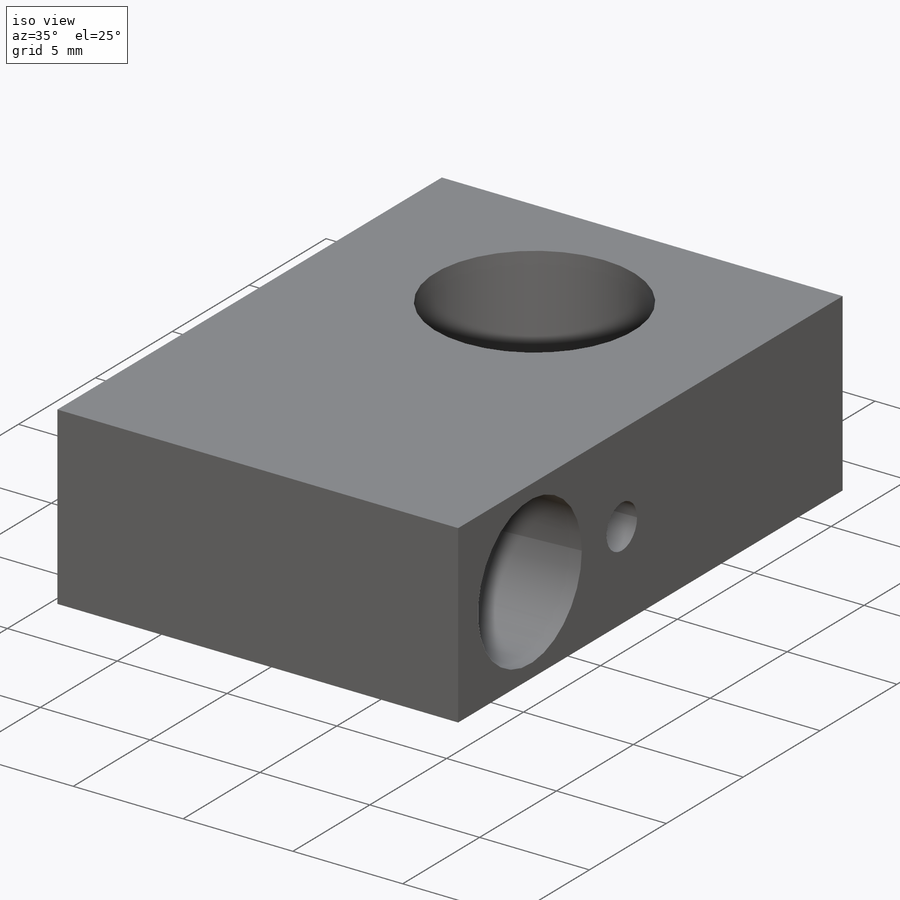
[diagram: iso view]
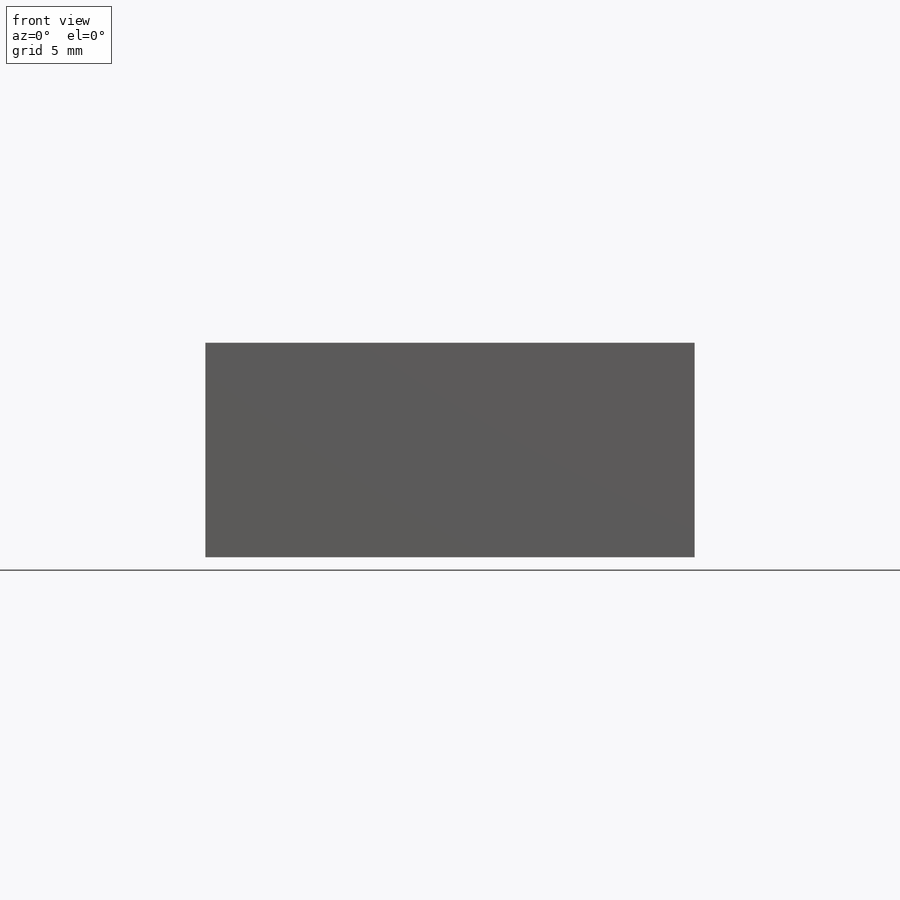
[diagram: front view]
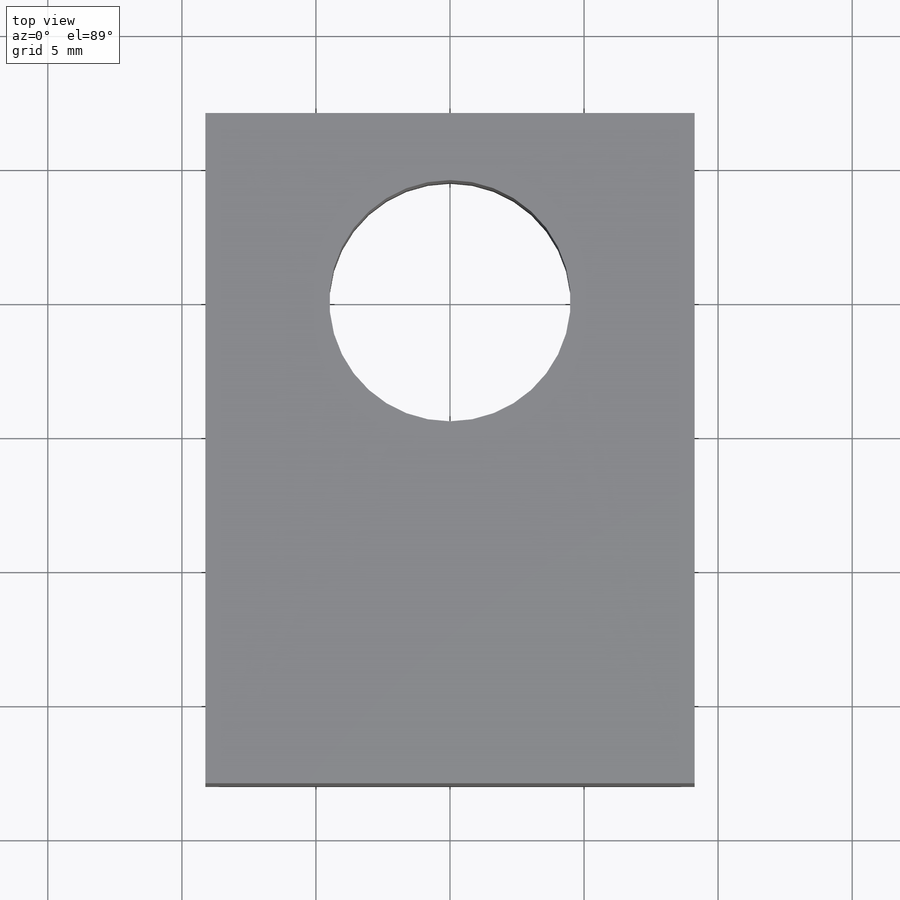
[diagram: top view]
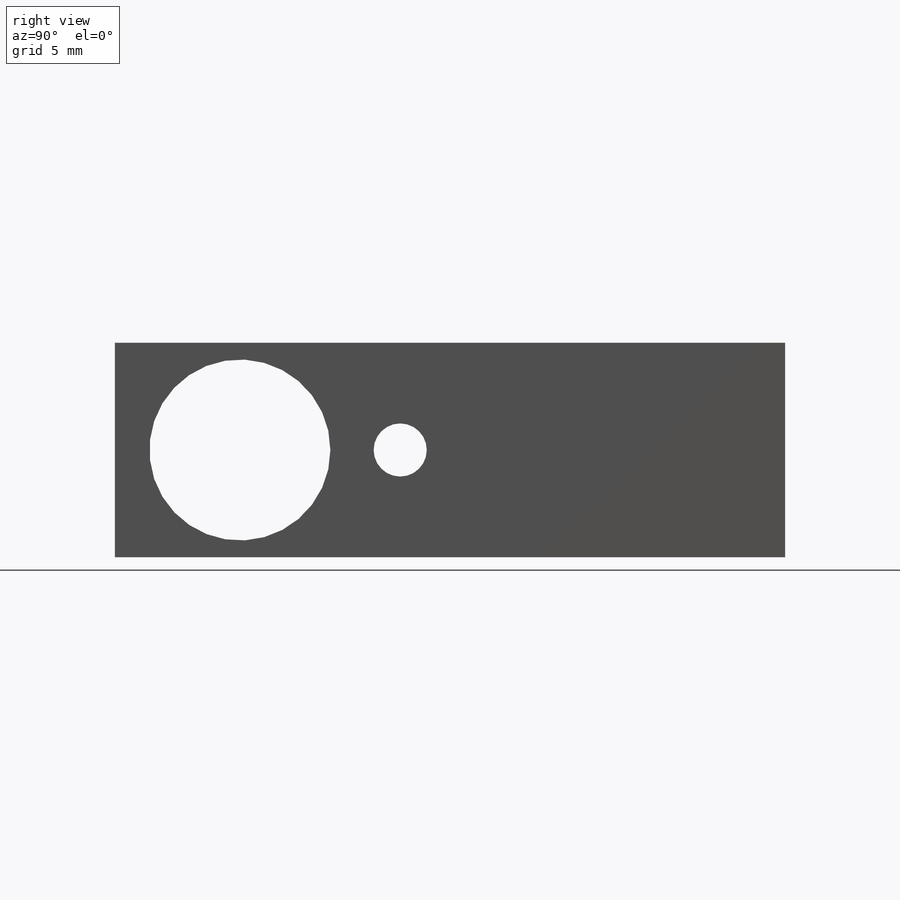
[diagram: right view]
SOLIDWORKS PART (.sldprt)
format: sldprt  version: not decoded by parser v0  size: 178,688 bytes
history: native  units: mm
features: sketch x4, material x1, extrude x1, hole x1, thread x1, cut_extrude x1 (+11 scaffold rows collapsed)
feature tree (20):
  scaffold x11  (default folders/planes/origin — collapsed)
  material  "6061-T6 (SS)"
  sketch  "Sketch1"  dims[c1.D1=7.0mm c1.D2=~12.085241mm c1.D6=3.175mm c2.D2=25.0mm c2.D3=18.25mm c2.D4=14.0mm c2.D5=~22.41499mm c3.D5=45.0deg c3.D4=1.524mm c3.D1=7.0mm c3.D2=25.0mm c4.D4=18.25mm]
  extrude  "Boss-Extrude1"  Depth=8mm
  hole  "M10x1.0 Tapped Hole1"  Diameter=9mm Depth=8mm
  sketch  "Sketch3"  dims[D1=7.0mm]
  sketch  "Sketch2"  dims[hole-wizard template sketch: 60 standard entries collapsed; hole parameters kept: c18.Thru Tap Drill Depth=8.0mm]
  thread  "Hole Thread1"  Diameter=10mm  [1 undecoded]
  sketch  "Sketch7"  dims[c1.D1=6.75mm c1.D3=1.9812mm c1.D4=3.175mm c1.D5=3.175mm c1.D2=11.65mm c2.D4=1.27mm c2.D5=1.27mm c2.D2=2.3495mm c3.D4=7.3575mm c3.D5=~13.336187mm]
  cut_extrude  "Cut-Extrude2"  [1 undecoded]
decode coverage: 7 of 8 modeling features carry decoded parameters
note: ~ marks probable driven/reference dimensions
note: 2 parameter values undecoded
note: suppression state not decoded; provenance and decode notes live in map.json
